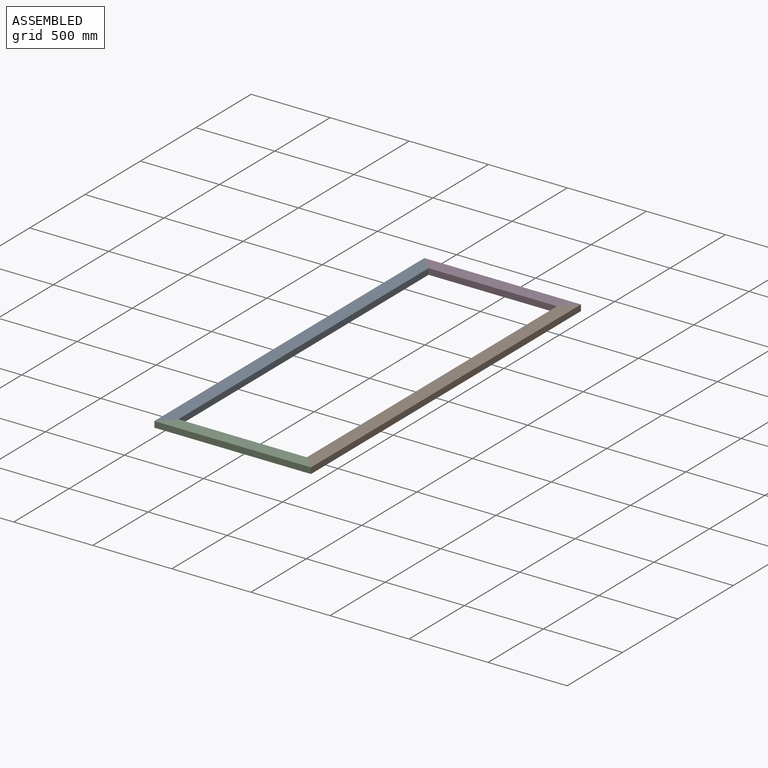
[diagram: assembled view]
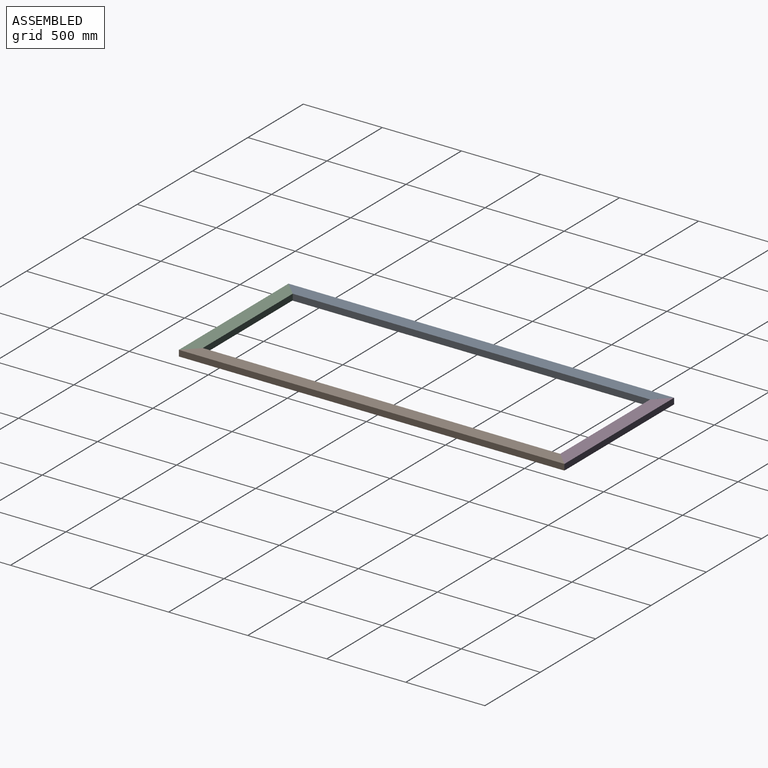
[diagram: assembled view, second angle]
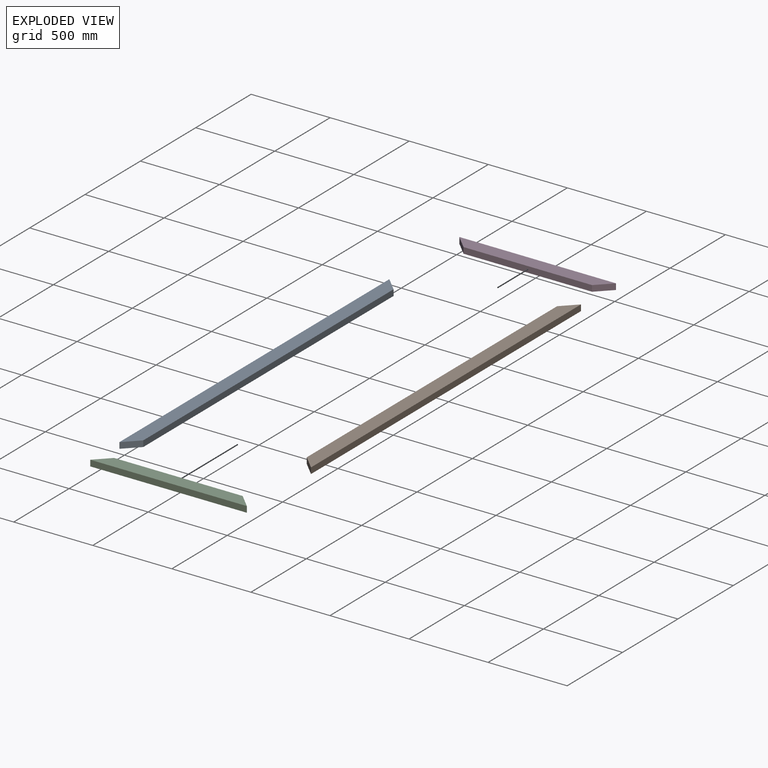
[diagram: exploded view]
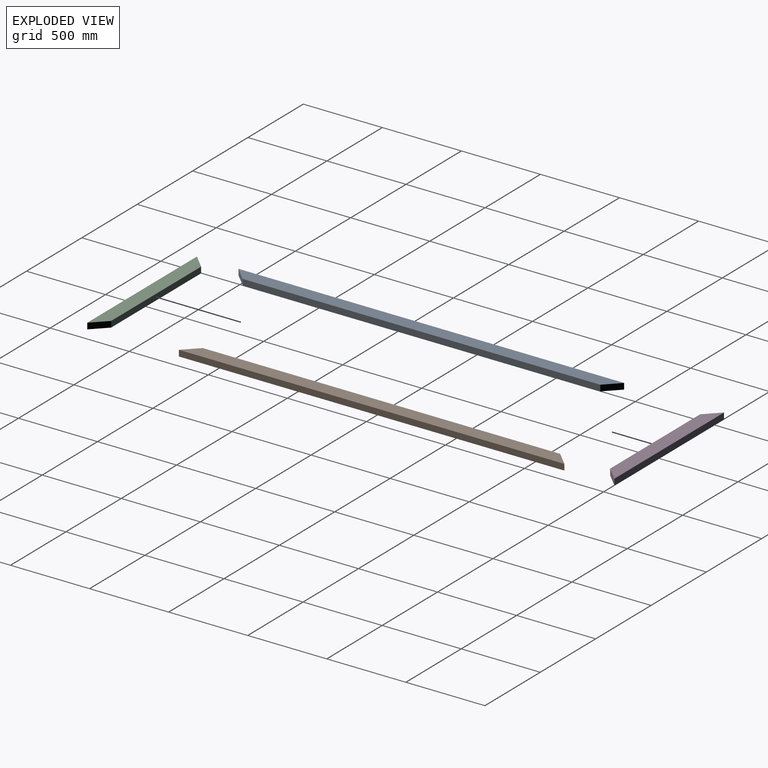
[diagram: exploded view, second angle]
ASSEMBLY  parts=4 mates=3
PART A: 6 faces, bbox 38.1x2438.4x88.9 mm
  f0: plane 2438.4x38.1mm, normal (0,0,1), area 92903mm2, adj f1,f3,f4,f5
  f1: plane 2438.4x88.9mm, normal (-1,0,0), area 208870.5mm2, adj f0,f2,f4,f5
  f2: plane 2260.6x38.1mm, normal (0,0,-1), area 86128.9mm2, adj f1,f3,f4,f5
  f3: plane 2438.4x88.9mm, normal (1,0,0), area 208870.5mm2, adj f0,f2,f4,f5
  f4: plane 88.9x88.9mm, normal (0,-0.71,-0.71), area 4790.1mm2, adj f0,f1,f2,f3
  f5: plane 88.9x88.9mm, normal (0,0.71,-0.71), area 4790.1mm2, adj f0,f1,f2,f3
PART B: same geometry as A
PART C: 6 faces, bbox 38.1x990.6x88.9 mm
  f0: plane 990.6x38.1mm, normal (0,0,1), area 37741.9mm2, adj f1,f3,f4,f5
  f1: plane 990.6x88.9mm, normal (-1,0,0), area 80161.1mm2, adj f0,f2,f4,f5
  f2: plane 812.8x38.1mm, normal (0,0,-1), area 30967.7mm2, adj f1,f3,f4,f5
  f3: plane 990.6x88.9mm, normal (1,0,0), area 80161.1mm2, adj f0,f2,f4,f5
  f4: plane 88.9x88.9mm, normal (0,-0.71,-0.71), area 4790.1mm2, adj f0,f1,f2,f3
  f5: plane 88.9x88.9mm, normal (0,0.71,-0.71), area 4790.1mm2, adj f0,f1,f2,f3
PART D: same geometry as C
PLACE A rot(axis=(0,-1,0),90deg) t=(27.07,14.37,-770.26)mm
PLACE B rot(axis=(0,1,0),90deg) t=(928.77,14.37,-770.26)mm
PLACE C rot(axis=(0.58,-0.58,0.58),120deg) t=(477.92,-1160.38,-770.26)mm
PLACE D rot(axis=(-0.58,0.58,0.58),120deg) t=(477.92,1189.12,-770.26)mm
MATE fastened D.f5 <-> A.f5  axis (-0.71,-0.71,0) through (27.07,1189.12,-770.26)mm
MATE fastened C.f5 <-> A.f4  axis (-0.71,0.71,0) through (27.07,-1160.38,-770.26)mm
MATE fastened D.f4 <-> B.f5  axis (0.71,-0.71,0) through (928.77,1189.12,-770.26)mm
